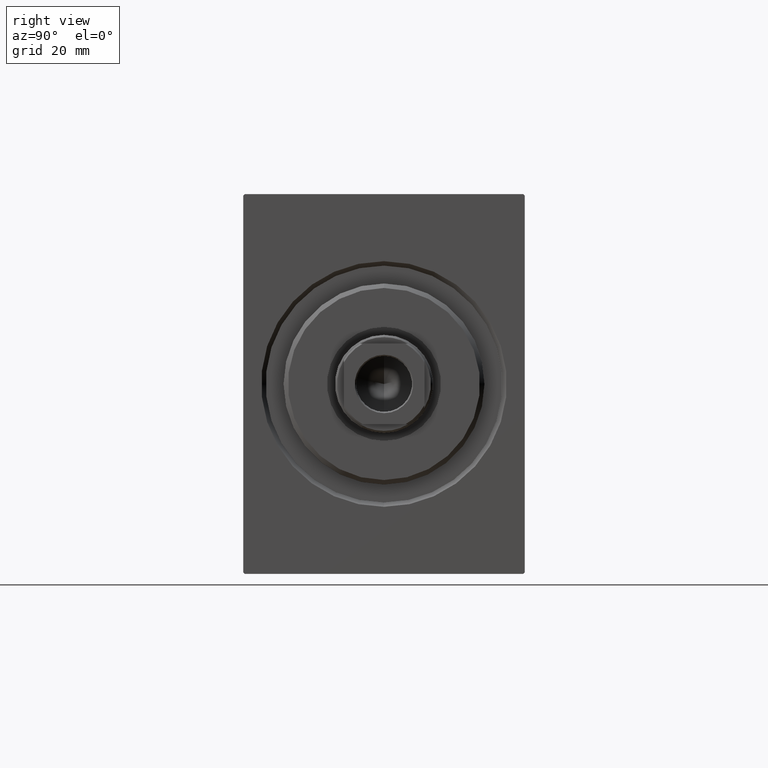
[diagram: clean part render]
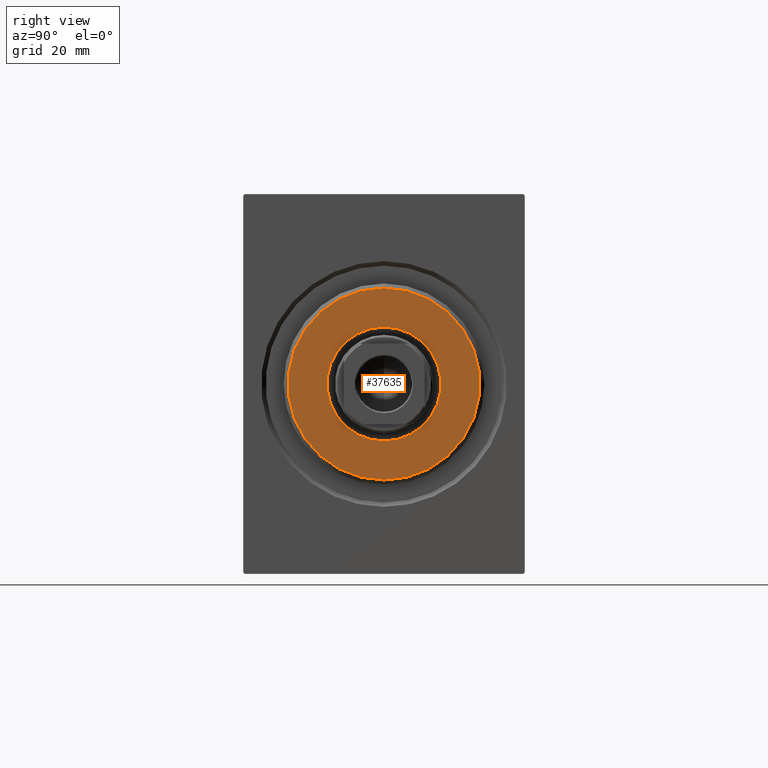
[diagram: same view with one face highlighted and labeled with its STEP entity id]
A machine part, right view. The second image highlights one B-rep face of the part: STEP entity #37635.
In plain terms, the highlighted planar face has unit normal (1, 0, 0).
Its self-contained STEP definition (entity closure, byte-faithful):
#1233 = CARTESIAN_POINT ( 'NONE',  ( 3.000000000000000000, 1.561424668912874914E-15, -12.75000000000000000 ) ) ;
#1575 = DIRECTION ( 'NONE',  ( 0.000000000000000000, 0.000000000000000000, -1.000000000000000000 ) ) ;
#2766 = FACE_OUTER_BOUND ( 'NONE', #16065, .T. ) ;
#3003 = AXIS2_PLACEMENT_3D ( 'NONE', #12675, #34948, #35368 ) ;
#3882 = CARTESIAN_POINT ( 'NONE',  ( 3.000000000000000000, 0.000000000000000000, 12.75000000000000000 ) ) ;
#4629 = DIRECTION ( 'NONE',  ( -1.000000000000000000, 0.000000000000000000, -0.000000000000000000 ) ) ;
#5288 = DIRECTION ( 'NONE',  ( 1.000000000000000000, -0.000000000000000000, 0.000000000000000000 ) ) ;
#7296 = CARTESIAN_POINT ( 'NONE',  ( 3.000000000000000000, 2.694222958124177993E-15, -21.50000000000001066 ) ) ;
#7536 = VERTEX_POINT ( 'NONE', #3882 ) ;
#10392 = VERTEX_POINT ( 'NONE', #38834 ) ;
#10568 = ORIENTED_EDGE ( 'NONE', *, *, #37048, .T. ) ;
#12675 = CARTESIAN_POINT ( 'NONE',  ( 3.000000000000000000, 0.000000000000000000, 0.000000000000000000 ) ) ;
#12842 = AXIS2_PLACEMENT_3D ( 'NONE', #23742, #16544, #13280 ) ;
#13280 = DIRECTION ( 'NONE',  ( 0.000000000000000000, 0.000000000000000000, -1.000000000000000000 ) ) ;
#14225 = CIRCLE ( 'NONE', #12842, 12.75000000000000000 ) ;
#15050 = CIRCLE ( 'NONE', #35271, 21.50000000000001066 ) ;
#16065 = EDGE_LOOP ( 'NONE', ( #10568, #20954 ) ) ;
#16066 = FACE_BOUND ( 'NONE', #17783, .T. ) ;
#16282 = CARTESIAN_POINT ( 'NONE',  ( 3.000000000000000000, 0.000000000000000000, 0.000000000000000000 ) ) ;
#16544 = DIRECTION ( 'NONE',  ( -1.000000000000000000, 0.000000000000000000, -0.000000000000000000 ) ) ;
#17687 = VERTEX_POINT ( 'NONE', #7296 ) ;
#17783 = EDGE_LOOP ( 'NONE', ( #18301, #25162 ) ) ;
#18301 = ORIENTED_EDGE ( 'NONE', *, *, #26427, .T. ) ;
#20954 = ORIENTED_EDGE ( 'NONE', *, *, #25571, .T. ) ;
#23742 = CARTESIAN_POINT ( 'NONE',  ( 3.000000000000000000, 0.000000000000000000, 0.000000000000000000 ) ) ;
#24615 = CIRCLE ( 'NONE', #34405, 12.75000000000000000 ) ;
#25162 = ORIENTED_EDGE ( 'NONE', *, *, #28316, .T. ) ;
#25571 = EDGE_CURVE ( 'NONE', #17687, #10392, #34373, .T. ) ;
#26427 = EDGE_CURVE ( 'NONE', #7536, #29698, #24615, .T. ) ;
#28316 = EDGE_CURVE ( 'NONE', #29698, #7536, #14225, .T. ) ;
#29162 = PLANE ( 'NONE',  #41525 ) ;
#29382 = DIRECTION ( 'NONE',  ( 1.000000000000000000, -0.000000000000000000, 0.000000000000000000 ) ) ;
#29698 = VERTEX_POINT ( 'NONE', #1233 ) ;
#34373 = CIRCLE ( 'NONE', #3003, 21.50000000000001066 ) ;
#34405 = AXIS2_PLACEMENT_3D ( 'NONE', #34524, #4629, #1575 ) ;
#34524 = CARTESIAN_POINT ( 'NONE',  ( 3.000000000000000000, 0.000000000000000000, 0.000000000000000000 ) ) ;
#34948 = DIRECTION ( 'NONE',  ( 1.000000000000000000, -0.000000000000000000, 0.000000000000000000 ) ) ;
#35175 = CARTESIAN_POINT ( 'NONE',  ( 3.000000000000000000, 0.000000000000000000, 0.000000000000000000 ) ) ;
#35271 = AXIS2_PLACEMENT_3D ( 'NONE', #35175, #5288, #41923 ) ;
#35368 = DIRECTION ( 'NONE',  ( 0.000000000000000000, 0.000000000000000000, -1.000000000000000000 ) ) ;
#37048 = EDGE_CURVE ( 'NONE', #10392, #17687, #15050, .T. ) ;
#37635 = ADVANCED_FACE ( 'NONE', ( #2766, #16066 ), #29162, .T. ) ;
#38834 = CARTESIAN_POINT ( 'NONE',  ( 3.000000000000000000, 0.000000000000000000, 21.50000000000001066 ) ) ;
#41525 = AXIS2_PLACEMENT_3D ( 'NONE', #16282, #29382, #42457 ) ;
#41923 = DIRECTION ( 'NONE',  ( 0.000000000000000000, 0.000000000000000000, -1.000000000000000000 ) ) ;
#42457 = DIRECTION ( 'NONE',  ( 0.000000000000000000, 0.000000000000000000, -1.000000000000000000 ) ) ;